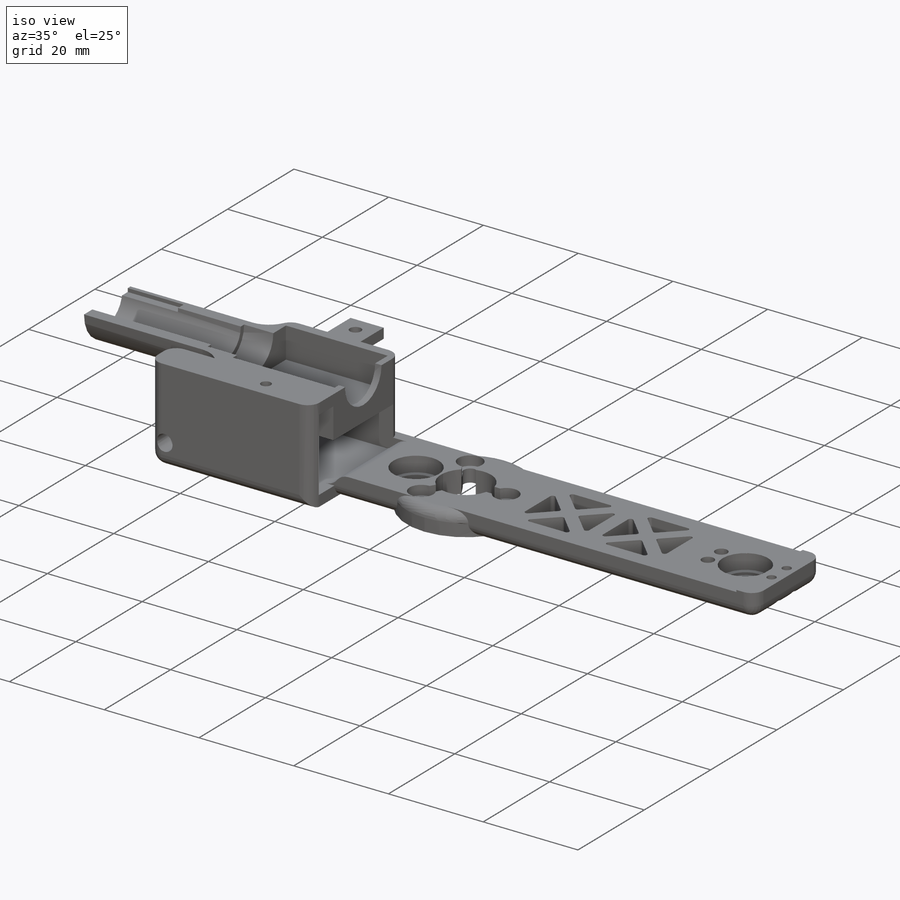
[diagram: iso view]
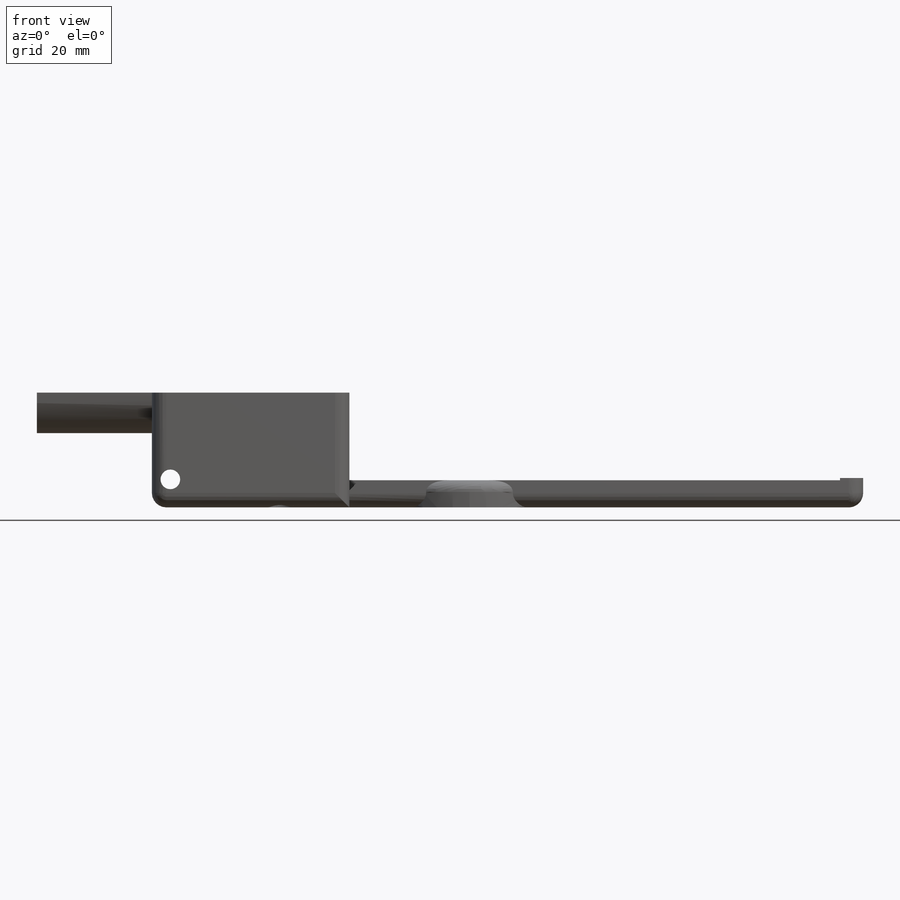
[diagram: front view]
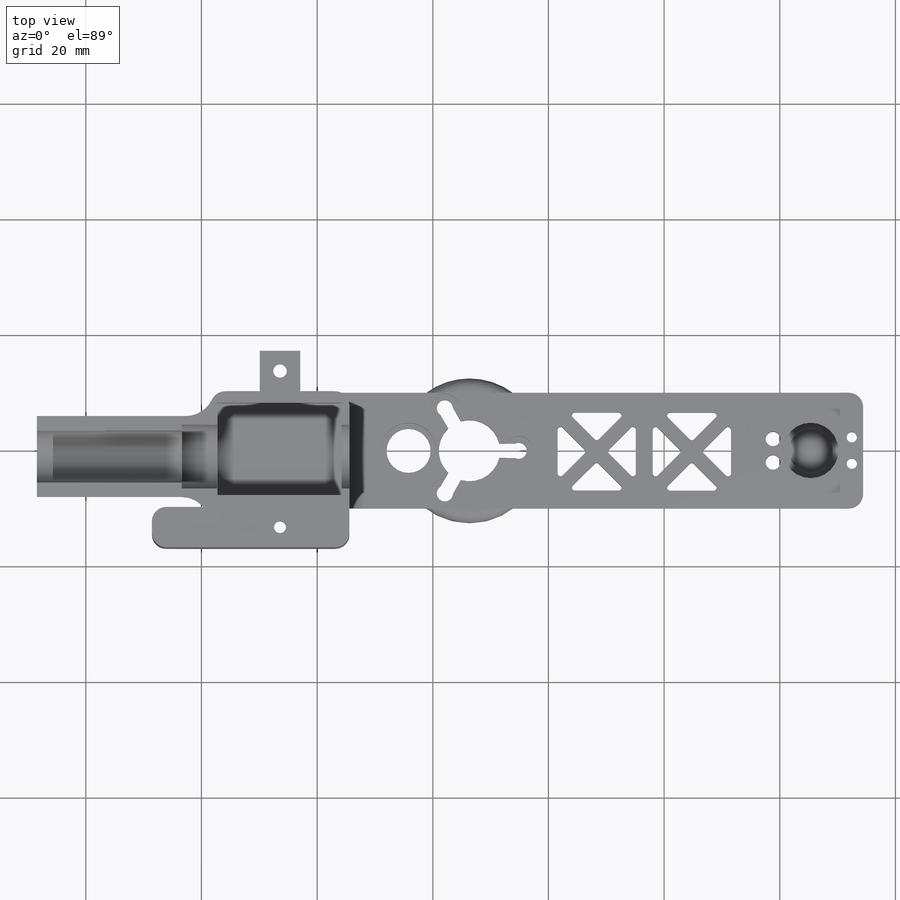
[diagram: top view]
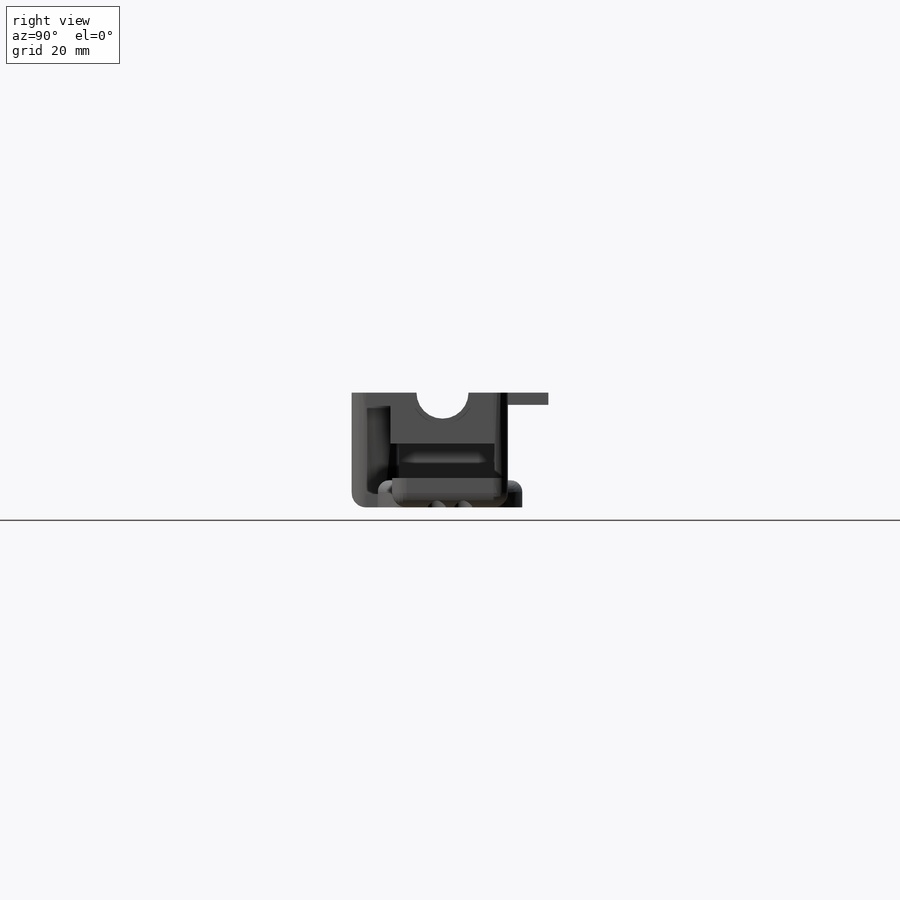
[diagram: right view]
SOLIDWORKS PART (.sldprt)
format: sldprt  version: not decoded by parser v0  size: 1,147,392 bytes
history: native  units: mm
features: sketch x32, cut_extrude x12, extrude x8, fillet x6, hole x3, material x1, shell x1 (+12 scaffold rows collapsed)
feature tree (75):
  scaffold x12  (default folders/planes/origin — collapsed)
  material  "Material <not specified>"
  sketch  "Sketch1"  dims[D1=116.84mm D2=20.0mm D3=4.0mm]
  extrude  "Boss-Extrude1"  Depth=4.689271mm
  sketch  "Sketch2"  dims[D1=4.0mm]
  extrude  "Boss-Extrude2"  Depth=0.39878mm
  sketch  "Sketch9"
  sketch  "Sketch3"  dims[D2=9.6012mm D1=5.08mm]
  cut_extrude  "Cut-Extrude1"  Depth=3.175mm
  sketch  "Sketch33"  dims[D1=24.0mm]
  extrude  "Boss-Extrude4"  Depth=15.15438mm
  sketch  "Sketch48"  dims[D1=10.16mm D2=7.0mm]
  extrude  "Boss-Extrude9"  [1 undecoded]
  sketch  "Sketch34"  dims[D1=16.0mm D2=21.5mm D3=~1.159222mm D4=~1.340778mm]
  cut_extrude  "Cut-Extrude18"  Depth=6.5mm
  sketch  "Sketch35"  dims[D1=11.0mm D2=11.3mm]
  cut_extrude  "Cut-Extrude19"  Depth=10mm
  sketch  "Sketch36"  dims[D1=~2.120113mm]
  extrude  "Boss-Extrude5"  Depth=7mm
  sketch  "Sketch38"  dims[D1=2.3368mm]
  cut_extrude  "Cut-Extrude20"  [1 undecoded]
  sketch  "Sketch39"  dims[D1=1.5mm]
  extrude  "Boss-Extrude7"  Depth=5mm
  sketch  "Sketch40"  dims[D1=1.0mm D2=1.0mm]
  extrude  "Boss-Extrude8"  Depth=25.05mm
  sketch  "Sketch49"  dims[D1=15.0mm D2=3.2mm]
  hole  "M3 Clearance Hole2"  Diameter=3.4mm Depth=17.02mm
  sketch  "Sketch51"
  sketch  "Sketch50"  dims[hole-wizard template sketch: 47 standard entries collapsed; hole parameters kept: c15.Hole Depth=17.02mm c15.D3=~14.816244mm c15.Drill Angle=118.0deg]
  sketch  "Sketch52"  dims[D1=12.0mm]
  hole  "CBORE for #1 Binding Head Machine Screw2"  Diameter=2.0574mm Depth=19.843701mm
  sketch  "Sketch54"
  sketch  "Sketch53"  dims[hole-wizard template sketch: 41 standard entries collapsed; hole parameters kept: c12.Thru Hole Dia.=2.0574mm c12.Thru Hole Depth=~19.843701mm c12.C'Bore Dia.=4.7625mm c12.C'Bore Depth=~16.141395mm]
  sketch  "Sketch41"  dims[D1=1.75mm D2=0.75mm D3=0.06mm]
  cut_extrude  "Cut-Extrude21"  Depth=11.8mm
  sketch  "Sketch4"  dims[D1=7.62mm]
  cut_extrude  "Cut-Extrude2"  Depth=0.508mm
  sketch  "Sketch10"  dims[D1=9.6012mm D2=~82.703111mm D3=69.524mm]
  cut_extrude  "Cut-Extrude5"  Depth=3.175mm
  sketch  "Sketch11"  dims[D1=7.62mm]
  cut_extrude  "Cut-Extrude6"  [1 undecoded]
  sketch  "Sketch6"  dims[D2=2.032mm D1=8.0mm D3=2.032mm D4=2.286mm]
  hole  "CBORE for #0 Socket Head Cap Screw1"  Diameter=1.778mm Depth=19.843701mm
  sketch  "3DSketch1"
  sketch  "Sketch7"  dims[hole-wizard template sketch: 42 standard entries collapsed; hole parameters kept: c12.Thru Hole Depth=~19.843701mm c12.C'Bore Dia.=3.175mm c12.C'Bore Depth=2.54mm]
  sketch  "Sketch16"  dims[c1.D1=2.2mm c1.D2=2.2mm c1.D3=~5.455403mm c2.D2=~10.302727mm]
  sketch  "Sketch21"  dims[c1.D1=8.0mm c1.D2=7.2mm c1.D4=1.1mm c1.D3=8.0mm c2.D1=~7.162973mm c2.D2=10.0mm c2.D6=2.5mm c3.D1=12.0mm c3.D2=10.0mm c3.D6=~7.470986mm c4.D1=~5.826758mm c4.D4=5.2mm c4.D5=17.0mm c4.D6=6.0mm c4.D2=~10.52322mm c4.D3=~5.663182mm c5.D3=60.0deg c5.D4=6.2mm c6.D3=6.0mm c6.D1=~10.52322mm c6.D4=2.5mm c6.D5=6.0mm c7.D3=2.5mm c7.D2=~10.52322mm c8.D3=6.0mm c8.D4=2.5mm c8.D1=8.5mm c9.D1=120.0deg c9.D2=8.5mm c10.D2=120.0deg c10.D3=~1.468425mm c10.D4=~1.468425mm c11.D3=~1.468425mm]
  sketch  "Sketch29"  dims[D1=25.0mm D2=0.0mm]
  extrude  "Boss-Extrude3"  [1 undecoded]
  sketch  "Sketch30"  dims[c1.D1=2.8mm c1.D2=2.8mm c1.D3=2.8mm c1.D4=~1.525185mm c1.D5=~0.762592mm c1.D6=~1.525185mm c2.D5=2.5mm c2.D6=~1.573349mm c3.D5=1.25mm c3.D6=1.25mm c3.D4=1.25mm]
  cut_extrude  "Cut-Extrude15"  [1 undecoded]
  sketch  "Sketch31"  dims[D1=5.0mm D2=5.0mm D3=5.0mm]
  cut_extrude  "Cut-Extrude16"  Depth=2mm
  sketch  "Sketch28"  dims[D1=2.527mm D2=2.032mm D3=~15.590985mm]
  cut_extrude  "Cut-Extrude14"  [1 undecoded]
  sketch  "Sketch32"  dims[c1.D5=0.508mm c1.D8=0.508mm c1.D11=0.508mm c1.D1=10.0mm c1.D2=10.0mm c2.D2=60.0deg c3.D2=10.0mm c4.D2=45.0deg c4.D4=~8.660254mm c5.D4=90.0deg c5.D6=~13.476917mm c6.D6=45.0deg c6.D7=90.0deg c6.D9=45.0deg c6.D10=90.0deg c6.D3=4.0]
  cut_extrude  "Cut-Extrude17"  [1 undecoded]
  shell  "Shell5"  Thickness=2.3mm
  fillet  "Fillet1"  Radius=2.5mm
  fillet  "Fillet2"  Radius=5.08mm
  fillet  "Fillet3"  Radius=2mm
  fillet  "Fillet4"  Radius=2.5mm
  fillet  "Fillet5"  Radius=3mm
  fillet  "Fillet6"  Radius=3mm
decode coverage: 51 of 62 modeling features carry decoded parameters
note: ~ marks probable driven/reference dimensions
note: 7 parameter values undecoded
summary: no parameter record found for 7 features
note: suppression state not decoded; provenance and decode notes live in map.json
